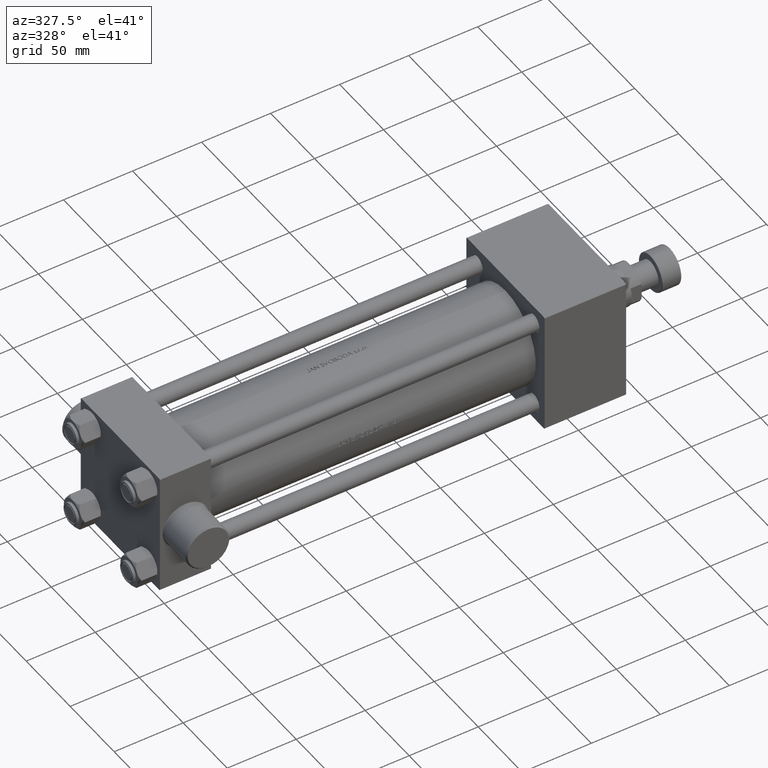
[diagram: clean part render]
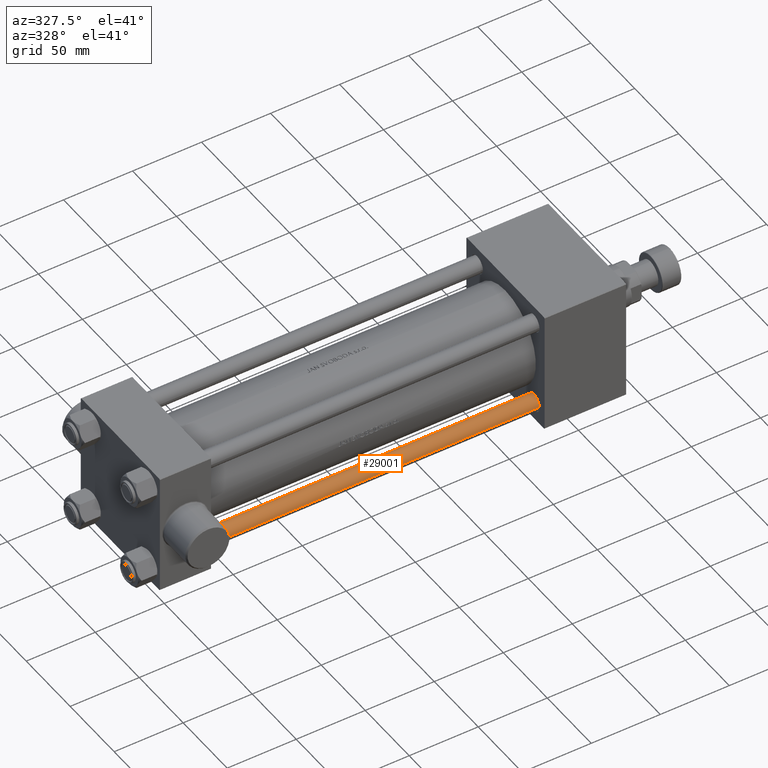
[diagram: same view with one face highlighted and labeled with its STEP entity id]
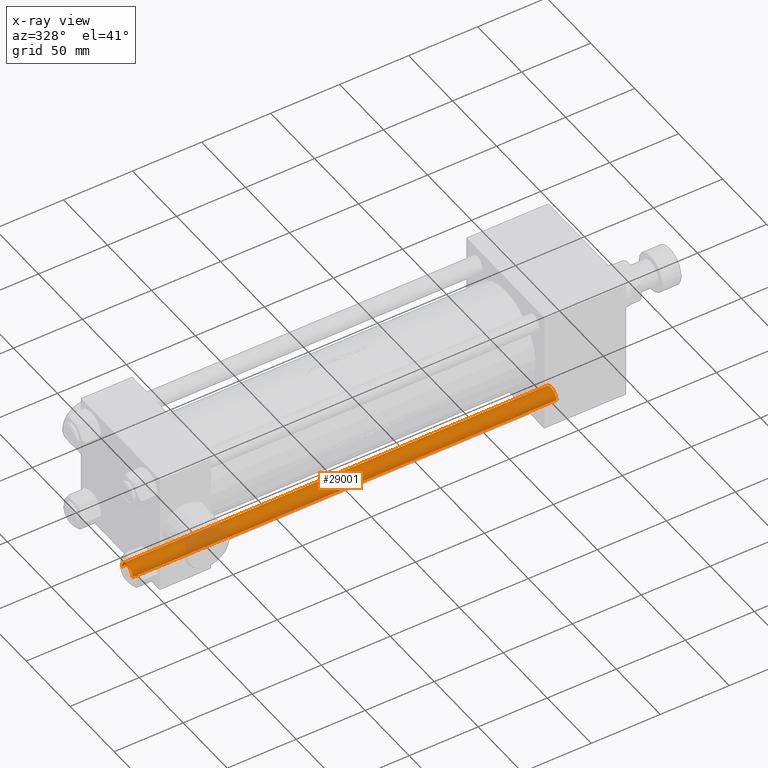
[diagram: x-ray of the same camera — body ghosted, the highlighted face saturated]
A machine part, auxiliary view. The second image highlights one B-rep face of the part: STEP entity #29001.
The next image is the same camera in x-ray: the body ghosted, the highlighted face saturated — about 10% of this face is hidden behind the body in this view.
In plain terms, the highlighted cylindrical surface (edge-blend (fillet) strip) has radius 6 mm, axis along (-1, 0, 0).
Its self-contained STEP definition (entity closure, byte-faithful):
#437 = VERTEX_POINT ( 'NONE', #26159 ) ;
#778 = ORIENTED_EDGE ( 'NONE', *, *, #18400, .F. ) ;
#2805 = CARTESIAN_POINT ( 'NONE',  ( 0.000000000000000000, 0.000000000000000000, 308.0000000000000000 ) ) ;
#3556 = DIRECTION ( 'NONE',  ( 0.000000000000000000, 0.000000000000000000, -1.000000000000000000 ) ) ;
#4175 = AXIS2_PLACEMENT_3D ( 'NONE', #41228, #42855, #13808 ) ;
#5547 = VERTEX_POINT ( 'NONE', #23022 ) ;
#5749 = CARTESIAN_POINT ( 'NONE',  ( 6.000000000000000888, 7.347880794884120722E-16, 0.5000000000000559552 ) ) ;
#7884 = VERTEX_POINT ( 'NONE', #5749 ) ;
#8046 = DIRECTION ( 'NONE',  ( 1.000000000000000000, 0.000000000000000000, 0.000000000000000000 ) ) ;
#10731 = EDGE_LOOP ( 'NONE', ( #19916, #13441, #36763, #778 ) ) ;
#11076 = DIRECTION ( 'NONE',  ( -0.000000000000000000, -0.000000000000000000, -1.000000000000000000 ) ) ;
#12588 = DIRECTION ( 'NONE',  ( -0.000000000000000000, -0.000000000000000000, -1.000000000000000000 ) ) ;
#12715 = AXIS2_PLACEMENT_3D ( 'NONE', #14689, #3556, #8046 ) ;
#13441 = ORIENTED_EDGE ( 'NONE', *, *, #28420, .T. ) ;
#13465 = CARTESIAN_POINT ( 'NONE',  ( 6.000000000000000888, 7.347880794884120722E-16, 308.0000000000000000 ) ) ;
#13713 = DIRECTION ( 'NONE',  ( -1.000000000000000000, 0.000000000000000000, 0.000000000000000000 ) ) ;
#13808 = DIRECTION ( 'NONE',  ( 1.000000000000000000, 0.000000000000000000, 0.000000000000000000 ) ) ;
#14689 = CARTESIAN_POINT ( 'NONE',  ( 0.000000000000000000, 0.000000000000000000, 307.4999999999999432 ) ) ;
#15376 = VECTOR ( 'NONE', #27873, 1000.000000000000000 ) ;
#18400 = EDGE_CURVE ( 'NONE', #437, #5547, #19896, .T. ) ;
#19896 = LINE ( 'NONE', #30086, #45366 ) ;
#19916 = ORIENTED_EDGE ( 'NONE', *, *, #43447, .T. ) ;
#20787 = CIRCLE ( 'NONE', #4175, 6.000000000000000888 ) ;
#22465 = CIRCLE ( 'NONE', #12715, 6.000000000000000888 ) ;
#23022 = CARTESIAN_POINT ( 'NONE',  ( -6.000000000000000888, 0.000000000000000000, 0.5000000000000559552 ) ) ;
#24792 = FACE_OUTER_BOUND ( 'NONE', #10731, .T. ) ;
#26159 = CARTESIAN_POINT ( 'NONE',  ( -6.000000000000000888, 0.000000000000000000, 307.4999999999999432 ) ) ;
#27873 = DIRECTION ( 'NONE',  ( -0.000000000000000000, -0.000000000000000000, -1.000000000000000000 ) ) ;
#28420 = EDGE_CURVE ( 'NONE', #29737, #7884, #41813, .T. ) ;
#29001 = ADVANCED_FACE ( 'NONE', ( #24792 ), #31900, .T. ) ;
#29737 = VERTEX_POINT ( 'NONE', #34575 ) ;
#30086 = CARTESIAN_POINT ( 'NONE',  ( -6.000000000000000888, 0.000000000000000000, 308.0000000000000000 ) ) ;
#31900 = CYLINDRICAL_SURFACE ( 'NONE', #32009, 6.000000000000000888 ) ;
#32009 = AXIS2_PLACEMENT_3D ( 'NONE', #2805, #11076, #13713 ) ;
#33301 = EDGE_CURVE ( 'NONE', #7884, #5547, #20787, .T. ) ;
#34575 = CARTESIAN_POINT ( 'NONE',  ( 6.000000000000000888, 7.347880794884120722E-16, 307.4999999999999432 ) ) ;
#36763 = ORIENTED_EDGE ( 'NONE', *, *, #33301, .T. ) ;
#41228 = CARTESIAN_POINT ( 'NONE',  ( 0.000000000000000000, 0.000000000000000000, 0.5000000000000559552 ) ) ;
#41813 = LINE ( 'NONE', #13465, #15376 ) ;
#42855 = DIRECTION ( 'NONE',  ( -0.000000000000000000, -0.000000000000000000, 1.000000000000000000 ) ) ;
#43447 = EDGE_CURVE ( 'NONE', #437, #29737, #22465, .T. ) ;
#45366 = VECTOR ( 'NONE', #12588, 1000.000000000000000 ) ;